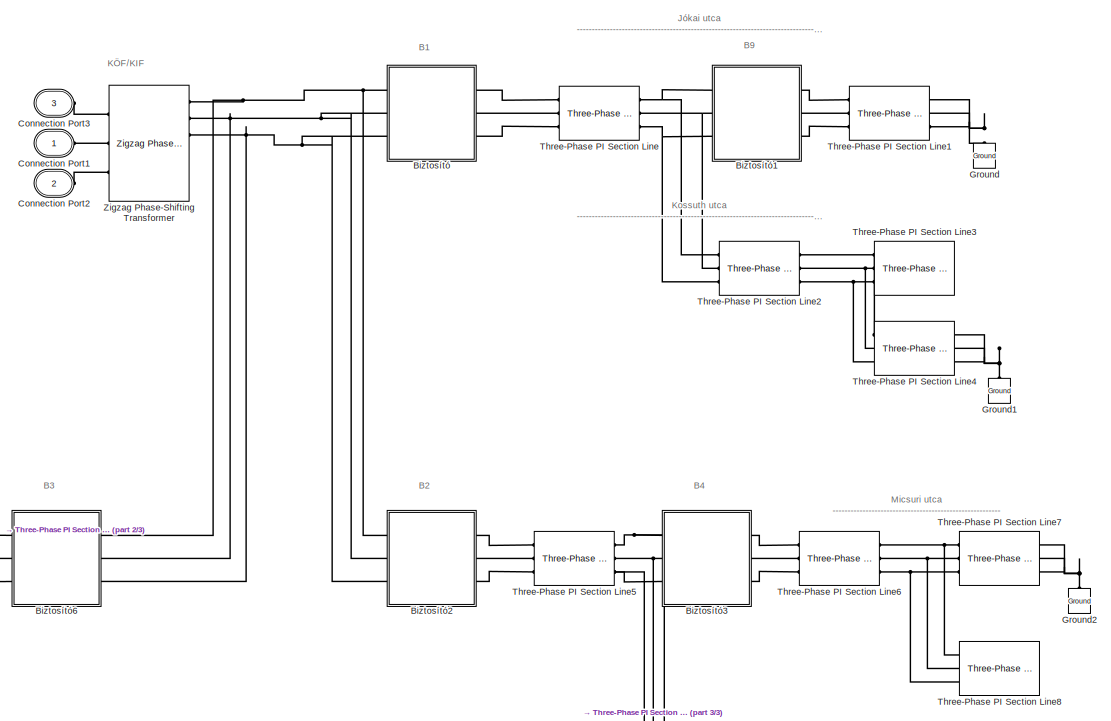
[diagram: root canvas - part 1/3, central region]
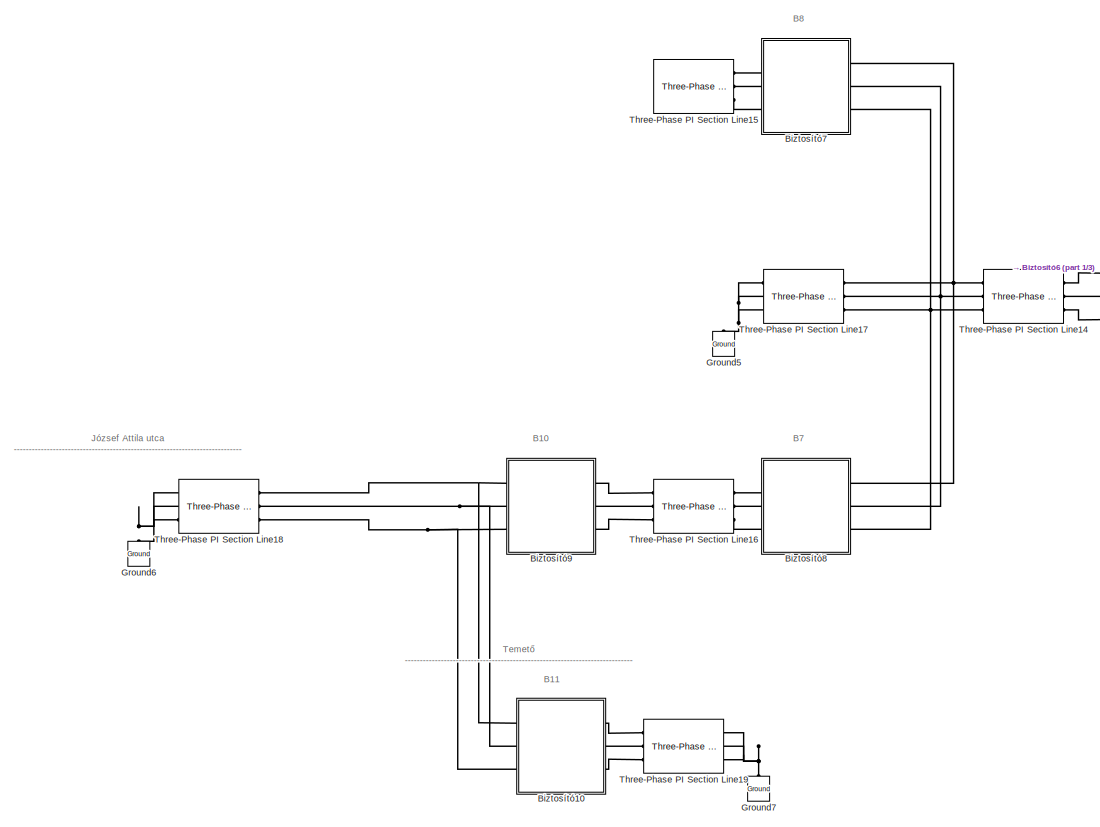
[diagram: root canvas - part 2/3, left side, full height]
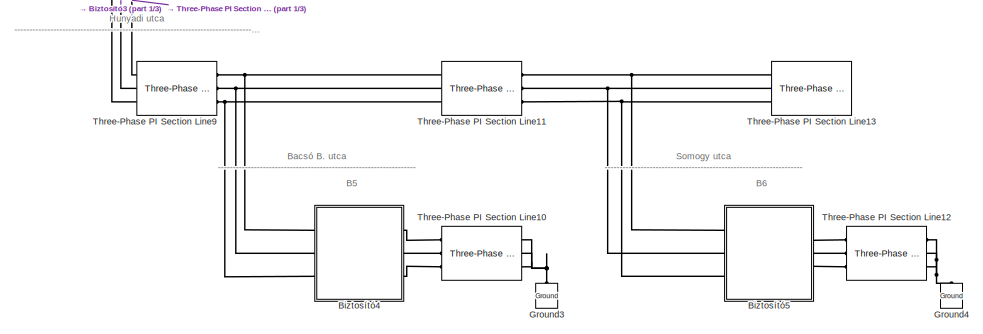
[diagram: root canvas - part 3/3, bottom right region]
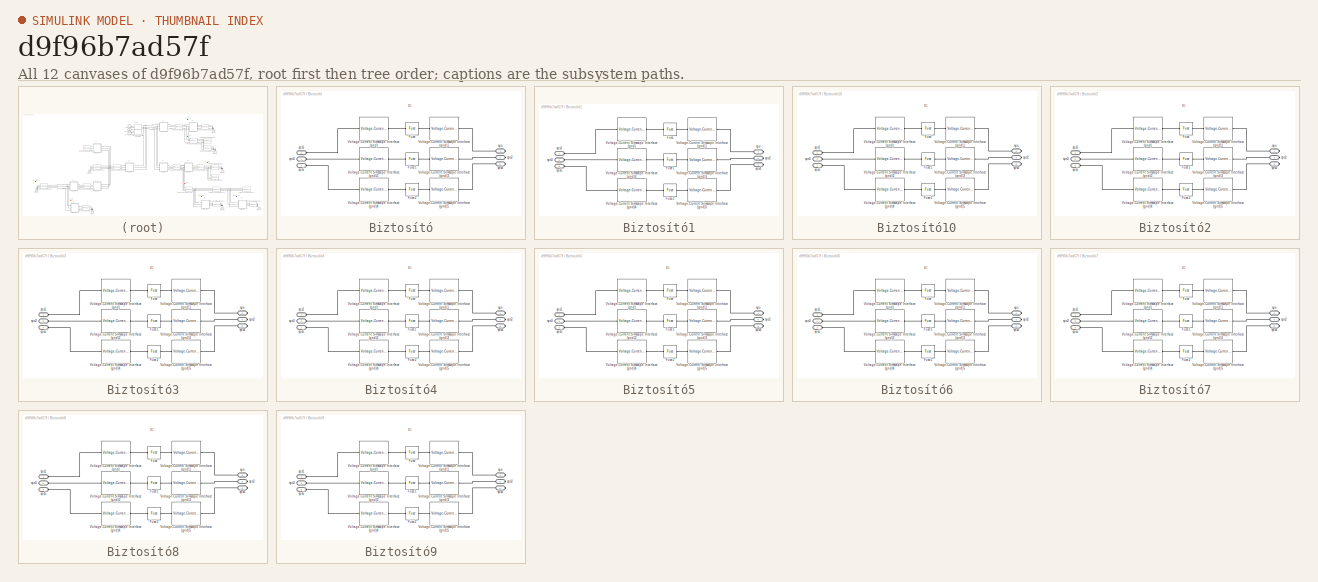
[diagram: thumbnail index - all 12 canvases of the model, root first then tree order]
MODEL slx_d9f96b7ad57f
KIND model
CONFIG AbsTol = auto
CONFIG EnableMultiTasking = off
CONFIG FixedStep = auto
CONFIG MaxStep = auto
CONFIG MinStep = auto
CONFIG RelTol = 1e-3
CONFIG SampleTimeConstraint = Unconstrained
CONFIG Solver = VariableStepAuto
CONFIG SolverName = VariableStepAuto
CONFIG StartTime = 0.0
CONFIG StopTime = 10.0
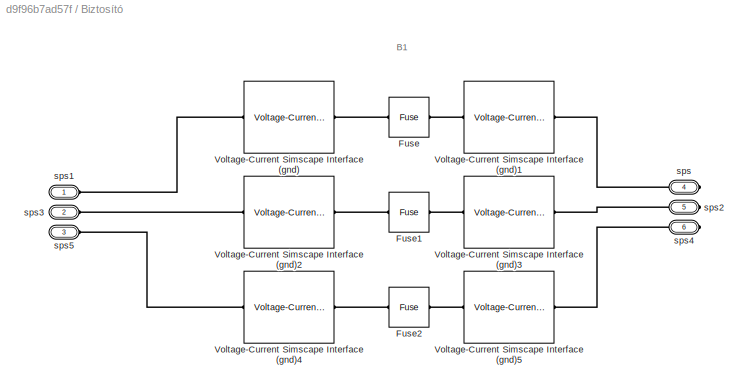
BLOCK [SubSystem] Biztosító
  Ports = [0, 0, 0, 0, 0, 3, 3]
  RequestExecContextInheritance = off
BLOCK [Reference] Biztosító/Fuse  REF=ee_lib/Switches & Breakers/Fuse
  Ports = [0, 0, 0, 0, 0, 1, 1]
  SourceBlock = ee_lib/Switches & Breakers/Fuse
  SourceProductBaseCode = PS
  SourceType = Fuse
BLOCK [Reference] Biztosító/Fuse1  REF=ee_lib/Switches & Breakers/Fuse
  Ports = [0, 0, 0, 0, 0, 1, 1]
  SourceBlock = ee_lib/Switches & Breakers/Fuse
  SourceProductBaseCode = PS
  SourceType = Fuse
BLOCK [Reference] Biztosító/Fuse2  REF=ee_lib/Switches & Breakers/Fuse
  Ports = [0, 0, 0, 0, 0, 1, 1]
  SourceBlock = ee_lib/Switches & Breakers/Fuse
  SourceProductBaseCode = PS
  SourceType = Fuse
BLOCK [Reference] Biztosító/Voltage-Current Simscape Interface (gnd)  REF=powerlib/Interface
Elements/Voltage-Current
Simscape Interface
(gnd)
  Ports = [0, 0, 0, 0, 0, 1, 1]
  SourceBlock = powerlib/Interface\nElements/Voltage-Current\nSimscape Interface\n(gnd)
  SourceProductBaseCode = PS
  SourceType = Specialized Power Systems - Simscape Interface Element
BLOCK [Reference] Biztosító/Voltage-Current Simscape Interface (gnd)1  REF=powerlib/Interface
Elements/Voltage-Current
Simscape Interface
(gnd)
  Ports = [0, 0, 0, 0, 0, 1, 1]
  SourceBlock = powerlib/Interface\nElements/Voltage-Current\nSimscape Interface\n(gnd)
  SourceProductBaseCode = PS
  SourceType = Specialized Power Systems - Simscape Interface Element
BLOCK [Reference] Biztosító/Voltage-Current Simscape Interface (gnd)2  REF=powerlib/Interface
Elements/Voltage-Current
Simscape Interface
(gnd)
  Ports = [0, 0, 0, 0, 0, 1, 1]
  SourceBlock = powerlib/Interface\nElements/Voltage-Current\nSimscape Interface\n(gnd)
  SourceProductBaseCode = PS
  SourceType = Specialized Power Systems - Simscape Interface Element
BLOCK [Reference] Biztosító/Voltage-Current Simscape Interface (gnd)3  REF=powerlib/Interface
Elements/Voltage-Current
Simscape Interface
(gnd)
  Ports = [0, 0, 0, 0, 0, 1, 1]
  SourceBlock = powerlib/Interface\nElements/Voltage-Current\nSimscape Interface\n(gnd)
  SourceProductBaseCode = PS
  SourceType = Specialized Power Systems - Simscape Interface Element
BLOCK [Reference] Biztosító/Voltage-Current Simscape Interface (gnd)4  REF=powerlib/Interface
Elements/Voltage-Current
Simscape Interface
(gnd)
  Ports = [0, 0, 0, 0, 0, 1, 1]
  SourceBlock = powerlib/Interface\nElements/Voltage-Current\nSimscape Interface\n(gnd)
  SourceProductBaseCode = PS
  SourceType = Specialized Power Systems - Simscape Interface Element
BLOCK [Reference] Biztosító/Voltage-Current Simscape Interface (gnd)5  REF=powerlib/Interface
Elements/Voltage-Current
Simscape Interface
(gnd)
  Ports = [0, 0, 0, 0, 0, 1, 1]
  SourceBlock = powerlib/Interface\nElements/Voltage-Current\nSimscape Interface\n(gnd)
  SourceProductBaseCode = PS
  SourceType = Specialized Power Systems - Simscape Interface Element
BLOCK [PMIOPort] Biztosító/sps
  Port = 4
  Side = Right
BLOCK [PMIOPort] Biztosító/sps1
  Side = Left
BLOCK [PMIOPort] Biztosító/sps2
  Port = 5
  Side = Right
BLOCK [PMIOPort] Biztosító/sps3
  Port = 2
  Side = Left
BLOCK [PMIOPort] Biztosító/sps4
  Port = 6
  Side = Right
BLOCK [PMIOPort] Biztosító/sps5
  Port = 3
  Side = Left
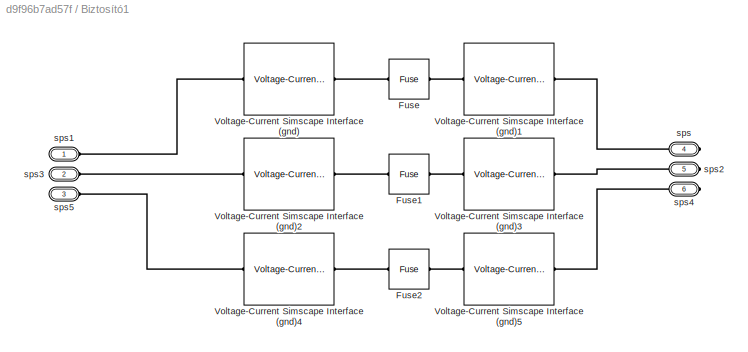
BLOCK [SubSystem] Biztosító1
  Ports = [0, 0, 0, 0, 0, 3, 3]
  RequestExecContextInheritance = off
BLOCK [Reference] Biztosító1/Fuse  REF=ee_lib/Switches & Breakers/Fuse
  Ports = [0, 0, 0, 0, 0, 1, 1]
  SourceBlock = ee_lib/Switches & Breakers/Fuse
  SourceProductBaseCode = PS
  SourceType = Fuse
BLOCK [Reference] Biztosító1/Fuse1  REF=ee_lib/Switches & Breakers/Fuse
  Ports = [0, 0, 0, 0, 0, 1, 1]
  SourceBlock = ee_lib/Switches & Breakers/Fuse
  SourceProductBaseCode = PS
  SourceType = Fuse
BLOCK [Reference] Biztosító1/Fuse2  REF=ee_lib/Switches & Breakers/Fuse
  Ports = [0, 0, 0, 0, 0, 1, 1]
  SourceBlock = ee_lib/Switches & Breakers/Fuse
  SourceProductBaseCode = PS
  SourceType = Fuse
BLOCK [Reference] Biztosító1/Voltage-Current Simscape Interface (gnd)  REF=powerlib/Interface
Elements/Voltage-Current
Simscape Interface
(gnd)
  Ports = [0, 0, 0, 0, 0, 1, 1]
  SourceBlock = powerlib/Interface\nElements/Voltage-Current\nSimscape Interface\n(gnd)
  SourceProductBaseCode = PS
  SourceType = Specialized Power Systems - Simscape Interface Element
BLOCK [Reference] Biztosító1/Voltage-Current Simscape Interface (gnd)1  REF=powerlib/Interface
Elements/Voltage-Current
Simscape Interface
(gnd)
  Ports = [0, 0, 0, 0, 0, 1, 1]
  SourceBlock = powerlib/Interface\nElements/Voltage-Current\nSimscape Interface\n(gnd)
  SourceProductBaseCode = PS
  SourceType = Specialized Power Systems - Simscape Interface Element
BLOCK [Reference] Biztosító1/Voltage-Current Simscape Interface (gnd)2  REF=powerlib/Interface
Elements/Voltage-Current
Simscape Interface
(gnd)
  Ports = [0, 0, 0, 0, 0, 1, 1]
  SourceBlock = powerlib/Interface\nElements/Voltage-Current\nSimscape Interface\n(gnd)
  SourceProductBaseCode = PS
  SourceType = Specialized Power Systems - Simscape Interface Element
BLOCK [Reference] Biztosító1/Voltage-Current Simscape Interface (gnd)3  REF=powerlib/Interface
Elements/Voltage-Current
Simscape Interface
(gnd)
  Ports = [0, 0, 0, 0, 0, 1, 1]
  SourceBlock = powerlib/Interface\nElements/Voltage-Current\nSimscape Interface\n(gnd)
  SourceProductBaseCode = PS
  SourceType = Specialized Power Systems - Simscape Interface Element
BLOCK [Reference] Biztosító1/Voltage-Current Simscape Interface (gnd)4  REF=powerlib/Interface
Elements/Voltage-Current
Simscape Interface
(gnd)
  Ports = [0, 0, 0, 0, 0, 1, 1]
  SourceBlock = powerlib/Interface\nElements/Voltage-Current\nSimscape Interface\n(gnd)
  SourceProductBaseCode = PS
  SourceType = Specialized Power Systems - Simscape Interface Element
BLOCK [Reference] Biztosító1/Voltage-Current Simscape Interface (gnd)5  REF=powerlib/Interface
Elements/Voltage-Current
Simscape Interface
(gnd)
  Ports = [0, 0, 0, 0, 0, 1, 1]
  SourceBlock = powerlib/Interface\nElements/Voltage-Current\nSimscape Interface\n(gnd)
  SourceProductBaseCode = PS
  SourceType = Specialized Power Systems - Simscape Interface Element
BLOCK [PMIOPort] Biztosító1/sps
  Port = 4
  Side = Right
BLOCK [PMIOPort] Biztosító1/sps1
  Side = Left
BLOCK [PMIOPort] Biztosító1/sps2
  Port = 5
  Side = Right
BLOCK [PMIOPort] Biztosító1/sps3
  Port = 2
  Side = Left
BLOCK [PMIOPort] Biztosító1/sps4
  Port = 6
  Side = Right
BLOCK [PMIOPort] Biztosító1/sps5
  Port = 3
  Side = Left
BLOCK [SubSystem] Biztosító10
  Ports = [0, 0, 0, 0, 0, 3, 3]
  RequestExecContextInheritance = off
BLOCK [Reference] Biztosító10/Fuse  REF=ee_lib/Switches & Breakers/Fuse
  Ports = [0, 0, 0, 0, 0, 1, 1]
  SourceBlock = ee_lib/Switches & Breakers/Fuse
  SourceProductBaseCode = PS
  SourceType = Fuse
BLOCK [Reference] Biztosító10/Fuse1  REF=ee_lib/Switches & Breakers/Fuse
  Ports = [0, 0, 0, 0, 0, 1, 1]
  SourceBlock = ee_lib/Switches & Breakers/Fuse
  SourceProductBaseCode = PS
  SourceType = Fuse
BLOCK [Reference] Biztosító10/Fuse2  REF=ee_lib/Switches & Breakers/Fuse
  Ports = [0, 0, 0, 0, 0, 1, 1]
  SourceBlock = ee_lib/Switches & Breakers/Fuse
  SourceProductBaseCode = PS
  SourceType = Fuse
BLOCK [Reference] Biztosító10/Voltage-Current Simscape Interface (gnd)  REF=powerlib/Interface
Elements/Voltage-Current
Simscape Interface
(gnd)
  Ports = [0, 0, 0, 0, 0, 1, 1]
  SourceBlock = powerlib/Interface\nElements/Voltage-Current\nSimscape Interface\n(gnd)
  SourceProductBaseCode = PS
  SourceType = Specialized Power Systems - Simscape Interface Element
BLOCK [Reference] Biztosító10/Voltage-Current Simscape Interface (gnd)1  REF=powerlib/Interface
Elements/Voltage-Current
Simscape Interface
(gnd)
  Ports = [0, 0, 0, 0, 0, 1, 1]
  SourceBlock = powerlib/Interface\nElements/Voltage-Current\nSimscape Interface\n(gnd)
  SourceProductBaseCode = PS
  SourceType = Specialized Power Systems - Simscape Interface Element
BLOCK [Reference] Biztosító10/Voltage-Current Simscape Interface (gnd)2  REF=powerlib/Interface
Elements/Voltage-Current
Simscape Interface
(gnd)
  Ports = [0, 0, 0, 0, 0, 1, 1]
  SourceBlock = powerlib/Interface\nElements/Voltage-Current\nSimscape Interface\n(gnd)
  SourceProductBaseCode = PS
  SourceType = Specialized Power Systems - Simscape Interface Element
BLOCK [Reference] Biztosító10/Voltage-Current Simscape Interface (gnd)3  REF=powerlib/Interface
Elements/Voltage-Current
Simscape Interface
(gnd)
  Ports = [0, 0, 0, 0, 0, 1, 1]
  SourceBlock = powerlib/Interface\nElements/Voltage-Current\nSimscape Interface\n(gnd)
  SourceProductBaseCode = PS
  SourceType = Specialized Power Systems - Simscape Interface Element
BLOCK [Reference] Biztosító10/Voltage-Current Simscape Interface (gnd)4  REF=powerlib/Interface
Elements/Voltage-Current
Simscape Interface
(gnd)
  Ports = [0, 0, 0, 0, 0, 1, 1]
  SourceBlock = powerlib/Interface\nElements/Voltage-Current\nSimscape Interface\n(gnd)
  SourceProductBaseCode = PS
  SourceType = Specialized Power Systems - Simscape Interface Element
BLOCK [Reference] Biztosító10/Voltage-Current Simscape Interface (gnd)5  REF=powerlib/Interface
Elements/Voltage-Current
Simscape Interface
(gnd)
  Ports = [0, 0, 0, 0, 0, 1, 1]
  SourceBlock = powerlib/Interface\nElements/Voltage-Current\nSimscape Interface\n(gnd)
  SourceProductBaseCode = PS
  SourceType = Specialized Power Systems - Simscape Interface Element
BLOCK [PMIOPort] Biztosító10/sps
  Port = 4
  Side = Right
BLOCK [PMIOPort] Biztosító10/sps1
  Side = Left
BLOCK [PMIOPort] Biztosító10/sps2
  Port = 5
  Side = Right
BLOCK [PMIOPort] Biztosító10/sps3
  Port = 2
  Side = Left
BLOCK [PMIOPort] Biztosító10/sps4
  Port = 6
  Side = Right
BLOCK [PMIOPort] Biztosító10/sps5
  Port = 3
  Side = Left
BLOCK [SubSystem] Biztosító2
  Ports = [0, 0, 0, 0, 0, 3, 3]
  RequestExecContextInheritance = off
BLOCK [Reference] Biztosító2/Fuse  REF=ee_lib/Switches & Breakers/Fuse
  Ports = [0, 0, 0, 0, 0, 1, 1]
  SourceBlock = ee_lib/Switches & Breakers/Fuse
  SourceProductBaseCode = PS
  SourceType = Fuse
BLOCK [Reference] Biztosító2/Fuse1  REF=ee_lib/Switches & Breakers/Fuse
  Ports = [0, 0, 0, 0, 0, 1, 1]
  SourceBlock = ee_lib/Switches & Breakers/Fuse
  SourceProductBaseCode = PS
  SourceType = Fuse
BLOCK [Reference] Biztosító2/Fuse2  REF=ee_lib/Switches & Breakers/Fuse
  Ports = [0, 0, 0, 0, 0, 1, 1]
  SourceBlock = ee_lib/Switches & Breakers/Fuse
  SourceProductBaseCode = PS
  SourceType = Fuse
BLOCK [Reference] Biztosító2/Voltage-Current Simscape Interface (gnd)  REF=powerlib/Interface
Elements/Voltage-Current
Simscape Interface
(gnd)
  Ports = [0, 0, 0, 0, 0, 1, 1]
  SourceBlock = powerlib/Interface\nElements/Voltage-Current\nSimscape Interface\n(gnd)
  SourceProductBaseCode = PS
  SourceType = Specialized Power Systems - Simscape Interface Element
BLOCK [Reference] Biztosító2/Voltage-Current Simscape Interface (gnd)1  REF=powerlib/Interface
Elements/Voltage-Current
Simscape Interface
(gnd)
  Ports = [0, 0, 0, 0, 0, 1, 1]
  SourceBlock = powerlib/Interface\nElements/Voltage-Current\nSimscape Interface\n(gnd)
  SourceProductBaseCode = PS
  SourceType = Specialized Power Systems - Simscape Interface Element
BLOCK [Reference] Biztosító2/Voltage-Current Simscape Interface (gnd)2  REF=powerlib/Interface
Elements/Voltage-Current
Simscape Interface
(gnd)
  Ports = [0, 0, 0, 0, 0, 1, 1]
  SourceBlock = powerlib/Interface\nElements/Voltage-Current\nSimscape Interface\n(gnd)
  SourceProductBaseCode = PS
  SourceType = Specialized Power Systems - Simscape Interface Element
BLOCK [Reference] Biztosító2/Voltage-Current Simscape Interface (gnd)3  REF=powerlib/Interface
Elements/Voltage-Current
Simscape Interface
(gnd)
  Ports = [0, 0, 0, 0, 0, 1, 1]
  SourceBlock = powerlib/Interface\nElements/Voltage-Current\nSimscape Interface\n(gnd)
  SourceProductBaseCode = PS
  SourceType = Specialized Power Systems - Simscape Interface Element
BLOCK [Reference] Biztosító2/Voltage-Current Simscape Interface (gnd)4  REF=powerlib/Interface
Elements/Voltage-Current
Simscape Interface
(gnd)
  Ports = [0, 0, 0, 0, 0, 1, 1]
  SourceBlock = powerlib/Interface\nElements/Voltage-Current\nSimscape Interface\n(gnd)
  SourceProductBaseCode = PS
  SourceType = Specialized Power Systems - Simscape Interface Element
BLOCK [Reference] Biztosító2/Voltage-Current Simscape Interface (gnd)5  REF=powerlib/Interface
Elements/Voltage-Current
Simscape Interface
(gnd)
  Ports = [0, 0, 0, 0, 0, 1, 1]
  SourceBlock = powerlib/Interface\nElements/Voltage-Current\nSimscape Interface\n(gnd)
  SourceProductBaseCode = PS
  SourceType = Specialized Power Systems - Simscape Interface Element
BLOCK [PMIOPort] Biztosító2/sps
  Port = 4
  Side = Right
BLOCK [PMIOPort] Biztosító2/sps1
  Side = Left
BLOCK [PMIOPort] Biztosító2/sps2
  Port = 5
  Side = Right
BLOCK [PMIOPort] Biztosító2/sps3
  Port = 2
  Side = Left
BLOCK [PMIOPort] Biztosító2/sps4
  Port = 6
  Side = Right
BLOCK [PMIOPort] Biztosító2/sps5
  Port = 3
  Side = Left
BLOCK [SubSystem] Biztosító3
  Ports = [0, 0, 0, 0, 0, 3, 3]
  RequestExecContextInheritance = off
BLOCK [Reference] Biztosító3/Fuse  REF=ee_lib/Switches & Breakers/Fuse
  Ports = [0, 0, 0, 0, 0, 1, 1]
  SourceBlock = ee_lib/Switches & Breakers/Fuse
  SourceProductBaseCode = PS
  SourceType = Fuse
BLOCK [Reference] Biztosító3/Fuse1  REF=ee_lib/Switches & Breakers/Fuse
  Ports = [0, 0, 0, 0, 0, 1, 1]
  SourceBlock = ee_lib/Switches & Breakers/Fuse
  SourceProductBaseCode = PS
  SourceType = Fuse
BLOCK [Reference] Biztosító3/Fuse2  REF=ee_lib/Switches & Breakers/Fuse
  Ports = [0, 0, 0, 0, 0, 1, 1]
  SourceBlock = ee_lib/Switches & Breakers/Fuse
  SourceProductBaseCode = PS
  SourceType = Fuse
BLOCK [Reference] Biztosító3/Voltage-Current Simscape Interface (gnd)  REF=powerlib/Interface
Elements/Voltage-Current
Simscape Interface
(gnd)
  Ports = [0, 0, 0, 0, 0, 1, 1]
  SourceBlock = powerlib/Interface\nElements/Voltage-Current\nSimscape Interface\n(gnd)
  SourceProductBaseCode = PS
  SourceType = Specialized Power Systems - Simscape Interface Element
BLOCK [Reference] Biztosító3/Voltage-Current Simscape Interface (gnd)1  REF=powerlib/Interface
Elements/Voltage-Current
Simscape Interface
(gnd)
  Ports = [0, 0, 0, 0, 0, 1, 1]
  SourceBlock = powerlib/Interface\nElements/Voltage-Current\nSimscape Interface\n(gnd)
  SourceProductBaseCode = PS
  SourceType = Specialized Power Systems - Simscape Interface Element
BLOCK [Reference] Biztosító3/Voltage-Current Simscape Interface (gnd)2  REF=powerlib/Interface
Elements/Voltage-Current
Simscape Interface
(gnd)
  Ports = [0, 0, 0, 0, 0, 1, 1]
  SourceBlock = powerlib/Interface\nElements/Voltage-Current\nSimscape Interface\n(gnd)
  SourceProductBaseCode = PS
  SourceType = Specialized Power Systems - Simscape Interface Element
BLOCK [Reference] Biztosító3/Voltage-Current Simscape Interface (gnd)3  REF=powerlib/Interface
Elements/Voltage-Current
Simscape Interface
(gnd)
  Ports = [0, 0, 0, 0, 0, 1, 1]
  SourceBlock = powerlib/Interface\nElements/Voltage-Current\nSimscape Interface\n(gnd)
  SourceProductBaseCode = PS
  SourceType = Specialized Power Systems - Simscape Interface Element
BLOCK [Reference] Biztosító3/Voltage-Current Simscape Interface (gnd)4  REF=powerlib/Interface
Elements/Voltage-Current
Simscape Interface
(gnd)
  Ports = [0, 0, 0, 0, 0, 1, 1]
  SourceBlock = powerlib/Interface\nElements/Voltage-Current\nSimscape Interface\n(gnd)
  SourceProductBaseCode = PS
  SourceType = Specialized Power Systems - Simscape Interface Element
BLOCK [Reference] Biztosító3/Voltage-Current Simscape Interface (gnd)5  REF=powerlib/Interface
Elements/Voltage-Current
Simscape Interface
(gnd)
  Ports = [0, 0, 0, 0, 0, 1, 1]
  SourceBlock = powerlib/Interface\nElements/Voltage-Current\nSimscape Interface\n(gnd)
  SourceProductBaseCode = PS
  SourceType = Specialized Power Systems - Simscape Interface Element
BLOCK [PMIOPort] Biztosító3/sps
  Port = 4
  Side = Right
BLOCK [PMIOPort] Biztosító3/sps1
  Side = Left
BLOCK [PMIOPort] Biztosító3/sps2
  Port = 5
  Side = Right
BLOCK [PMIOPort] Biztosító3/sps3
  Port = 2
  Side = Left
BLOCK [PMIOPort] Biztosító3/sps4
  Port = 6
  Side = Right
BLOCK [PMIOPort] Biztosító3/sps5
  Port = 3
  Side = Left
BLOCK [SubSystem] Biztosító4
  Ports = [0, 0, 0, 0, 0, 3, 3]
  RequestExecContextInheritance = off
BLOCK [Reference] Biztosító4/Fuse  REF=ee_lib/Switches & Breakers/Fuse
  Ports = [0, 0, 0, 0, 0, 1, 1]
  SourceBlock = ee_lib/Switches & Breakers/Fuse
  SourceProductBaseCode = PS
  SourceType = Fuse
BLOCK [Reference] Biztosító4/Fuse1  REF=ee_lib/Switches & Breakers/Fuse
  Ports = [0, 0, 0, 0, 0, 1, 1]
  SourceBlock = ee_lib/Switches & Breakers/Fuse
  SourceProductBaseCode = PS
  SourceType = Fuse
BLOCK [Reference] Biztosító4/Fuse2  REF=ee_lib/Switches & Breakers/Fuse
  Ports = [0, 0, 0, 0, 0, 1, 1]
  SourceBlock = ee_lib/Switches & Breakers/Fuse
  SourceProductBaseCode = PS
  SourceType = Fuse
BLOCK [Reference] Biztosító4/Voltage-Current Simscape Interface (gnd)  REF=powerlib/Interface
Elements/Voltage-Current
Simscape Interface
(gnd)
  Ports = [0, 0, 0, 0, 0, 1, 1]
  SourceBlock = powerlib/Interface\nElements/Voltage-Current\nSimscape Interface\n(gnd)
  SourceProductBaseCode = PS
  SourceType = Specialized Power Systems - Simscape Interface Element
BLOCK [Reference] Biztosító4/Voltage-Current Simscape Interface (gnd)1  REF=powerlib/Interface
Elements/Voltage-Current
Simscape Interface
(gnd)
  Ports = [0, 0, 0, 0, 0, 1, 1]
  SourceBlock = powerlib/Interface\nElements/Voltage-Current\nSimscape Interface\n(gnd)
  SourceProductBaseCode = PS
  SourceType = Specialized Power Systems - Simscape Interface Element
BLOCK [Reference] Biztosító4/Voltage-Current Simscape Interface (gnd)2  REF=powerlib/Interface
Elements/Voltage-Current
Simscape Interface
(gnd)
  Ports = [0, 0, 0, 0, 0, 1, 1]
  SourceBlock = powerlib/Interface\nElements/Voltage-Current\nSimscape Interface\n(gnd)
  SourceProductBaseCode = PS
  SourceType = Specialized Power Systems - Simscape Interface Element
BLOCK [Reference] Biztosító4/Voltage-Current Simscape Interface (gnd)3  REF=powerlib/Interface
Elements/Voltage-Current
Simscape Interface
(gnd)
  Ports = [0, 0, 0, 0, 0, 1, 1]
  SourceBlock = powerlib/Interface\nElements/Voltage-Current\nSimscape Interface\n(gnd)
  SourceProductBaseCode = PS
  SourceType = Specialized Power Systems - Simscape Interface Element
BLOCK [Reference] Biztosító4/Voltage-Current Simscape Interface (gnd)4  REF=powerlib/Interface
Elements/Voltage-Current
Simscape Interface
(gnd)
  Ports = [0, 0, 0, 0, 0, 1, 1]
  SourceBlock = powerlib/Interface\nElements/Voltage-Current\nSimscape Interface\n(gnd)
  SourceProductBaseCode = PS
  SourceType = Specialized Power Systems - Simscape Interface Element
BLOCK [Reference] Biztosító4/Voltage-Current Simscape Interface (gnd)5  REF=powerlib/Interface
Elements/Voltage-Current
Simscape Interface
(gnd)
  Ports = [0, 0, 0, 0, 0, 1, 1]
  SourceBlock = powerlib/Interface\nElements/Voltage-Current\nSimscape Interface\n(gnd)
  SourceProductBaseCode = PS
  SourceType = Specialized Power Systems - Simscape Interface Element
BLOCK [PMIOPort] Biztosító4/sps
  Port = 4
  Side = Right
BLOCK [PMIOPort] Biztosító4/sps1
  Side = Left
BLOCK [PMIOPort] Biztosító4/sps2
  Port = 5
  Side = Right
BLOCK [PMIOPort] Biztosító4/sps3
  Port = 2
  Side = Left
BLOCK [PMIOPort] Biztosító4/sps4
  Port = 6
  Side = Right
BLOCK [PMIOPort] Biztosító4/sps5
  Port = 3
  Side = Left
BLOCK [SubSystem] Biztosító5
  Ports = [0, 0, 0, 0, 0, 3, 3]
  RequestExecContextInheritance = off
BLOCK [Reference] Biztosító5/Fuse  REF=ee_lib/Switches & Breakers/Fuse
  Ports = [0, 0, 0, 0, 0, 1, 1]
  SourceBlock = ee_lib/Switches & Breakers/Fuse
  SourceProductBaseCode = PS
  SourceType = Fuse
BLOCK [Reference] Biztosító5/Fuse1  REF=ee_lib/Switches & Breakers/Fuse
  Ports = [0, 0, 0, 0, 0, 1, 1]
  SourceBlock = ee_lib/Switches & Breakers/Fuse
  SourceProductBaseCode = PS
  SourceType = Fuse
BLOCK [Reference] Biztosító5/Fuse2  REF=ee_lib/Switches & Breakers/Fuse
  Ports = [0, 0, 0, 0, 0, 1, 1]
  SourceBlock = ee_lib/Switches & Breakers/Fuse
  SourceProductBaseCode = PS
  SourceType = Fuse
BLOCK [Reference] Biztosító5/Voltage-Current Simscape Interface (gnd)  REF=powerlib/Interface
Elements/Voltage-Current
Simscape Interface
(gnd)
  Ports = [0, 0, 0, 0, 0, 1, 1]
  SourceBlock = powerlib/Interface\nElements/Voltage-Current\nSimscape Interface\n(gnd)
  SourceProductBaseCode = PS
  SourceType = Specialized Power Systems - Simscape Interface Element
BLOCK [Reference] Biztosító5/Voltage-Current Simscape Interface (gnd)1  REF=powerlib/Interface
Elements/Voltage-Current
Simscape Interface
(gnd)
  Ports = [0, 0, 0, 0, 0, 1, 1]
  SourceBlock = powerlib/Interface\nElements/Voltage-Current\nSimscape Interface\n(gnd)
  SourceProductBaseCode = PS
  SourceType = Specialized Power Systems - Simscape Interface Element
BLOCK [Reference] Biztosító5/Voltage-Current Simscape Interface (gnd)2  REF=powerlib/Interface
Elements/Voltage-Current
Simscape Interface
(gnd)
  Ports = [0, 0, 0, 0, 0, 1, 1]
  SourceBlock = powerlib/Interface\nElements/Voltage-Current\nSimscape Interface\n(gnd)
  SourceProductBaseCode = PS
  SourceType = Specialized Power Systems - Simscape Interface Element
BLOCK [Reference] Biztosító5/Voltage-Current Simscape Interface (gnd)3  REF=powerlib/Interface
Elements/Voltage-Current
Simscape Interface
(gnd)
  Ports = [0, 0, 0, 0, 0, 1, 1]
  SourceBlock = powerlib/Interface\nElements/Voltage-Current\nSimscape Interface\n(gnd)
  SourceProductBaseCode = PS
  SourceType = Specialized Power Systems - Simscape Interface Element
BLOCK [Reference] Biztosító5/Voltage-Current Simscape Interface (gnd)4  REF=powerlib/Interface
Elements/Voltage-Current
Simscape Interface
(gnd)
  Ports = [0, 0, 0, 0, 0, 1, 1]
  SourceBlock = powerlib/Interface\nElements/Voltage-Current\nSimscape Interface\n(gnd)
  SourceProductBaseCode = PS
  SourceType = Specialized Power Systems - Simscape Interface Element
BLOCK [Reference] Biztosító5/Voltage-Current Simscape Interface (gnd)5  REF=powerlib/Interface
Elements/Voltage-Current
Simscape Interface
(gnd)
  Ports = [0, 0, 0, 0, 0, 1, 1]
  SourceBlock = powerlib/Interface\nElements/Voltage-Current\nSimscape Interface\n(gnd)
  SourceProductBaseCode = PS
  SourceType = Specialized Power Systems - Simscape Interface Element
BLOCK [PMIOPort] Biztosító5/sps
  Port = 4
  Side = Right
BLOCK [PMIOPort] Biztosító5/sps1
  Side = Left
BLOCK [PMIOPort] Biztosító5/sps2
  Port = 5
  Side = Right
BLOCK [PMIOPort] Biztosító5/sps3
  Port = 2
  Side = Left
BLOCK [PMIOPort] Biztosító5/sps4
  Port = 6
  Side = Right
BLOCK [PMIOPort] Biztosító5/sps5
  Port = 3
  Side = Left
BLOCK [SubSystem] Biztosító6
  Ports = [0, 0, 0, 0, 0, 3, 3]
  RequestExecContextInheritance = off
BLOCK [Reference] Biztosító6/Fuse  REF=ee_lib/Switches & Breakers/Fuse
  Ports = [0, 0, 0, 0, 0, 1, 1]
  SourceBlock = ee_lib/Switches & Breakers/Fuse
  SourceProductBaseCode = PS
  SourceType = Fuse
BLOCK [Reference] Biztosító6/Fuse1  REF=ee_lib/Switches & Breakers/Fuse
  Ports = [0, 0, 0, 0, 0, 1, 1]
  SourceBlock = ee_lib/Switches & Breakers/Fuse
  SourceProductBaseCode = PS
  SourceType = Fuse
BLOCK [Reference] Biztosító6/Fuse2  REF=ee_lib/Switches & Breakers/Fuse
  Ports = [0, 0, 0, 0, 0, 1, 1]
  SourceBlock = ee_lib/Switches & Breakers/Fuse
  SourceProductBaseCode = PS
  SourceType = Fuse
BLOCK [Reference] Biztosító6/Voltage-Current Simscape Interface (gnd)  REF=powerlib/Interface
Elements/Voltage-Current
Simscape Interface
(gnd)
  Ports = [0, 0, 0, 0, 0, 1, 1]
  SourceBlock = powerlib/Interface\nElements/Voltage-Current\nSimscape Interface\n(gnd)
  SourceProductBaseCode = PS
  SourceType = Specialized Power Systems - Simscape Interface Element
BLOCK [Reference] Biztosító6/Voltage-Current Simscape Interface (gnd)1  REF=powerlib/Interface
Elements/Voltage-Current
Simscape Interface
(gnd)
  Ports = [0, 0, 0, 0, 0, 1, 1]
  SourceBlock = powerlib/Interface\nElements/Voltage-Current\nSimscape Interface\n(gnd)
  SourceProductBaseCode = PS
  SourceType = Specialized Power Systems - Simscape Interface Element
BLOCK [Reference] Biztosító6/Voltage-Current Simscape Interface (gnd)2  REF=powerlib/Interface
Elements/Voltage-Current
Simscape Interface
(gnd)
  Ports = [0, 0, 0, 0, 0, 1, 1]
  SourceBlock = powerlib/Interface\nElements/Voltage-Current\nSimscape Interface\n(gnd)
  SourceProductBaseCode = PS
  SourceType = Specialized Power Systems - Simscape Interface Element
BLOCK [Reference] Biztosító6/Voltage-Current Simscape Interface (gnd)3  REF=powerlib/Interface
Elements/Voltage-Current
Simscape Interface
(gnd)
  Ports = [0, 0, 0, 0, 0, 1, 1]
  SourceBlock = powerlib/Interface\nElements/Voltage-Current\nSimscape Interface\n(gnd)
  SourceProductBaseCode = PS
  SourceType = Specialized Power Systems - Simscape Interface Element
BLOCK [Reference] Biztosító6/Voltage-Current Simscape Interface (gnd)4  REF=powerlib/Interface
Elements/Voltage-Current
Simscape Interface
(gnd)
  Ports = [0, 0, 0, 0, 0, 1, 1]
  SourceBlock = powerlib/Interface\nElements/Voltage-Current\nSimscape Interface\n(gnd)
  SourceProductBaseCode = PS
  SourceType = Specialized Power Systems - Simscape Interface Element
BLOCK [Reference] Biztosító6/Voltage-Current Simscape Interface (gnd)5  REF=powerlib/Interface
Elements/Voltage-Current
Simscape Interface
(gnd)
  Ports = [0, 0, 0, 0, 0, 1, 1]
  SourceBlock = powerlib/Interface\nElements/Voltage-Current\nSimscape Interface\n(gnd)
  SourceProductBaseCode = PS
  SourceType = Specialized Power Systems - Simscape Interface Element
BLOCK [PMIOPort] Biztosító6/sps
  Port = 4
  Side = Right
BLOCK [PMIOPort] Biztosító6/sps1
  Side = Left
BLOCK [PMIOPort] Biztosító6/sps2
  Port = 5
  Side = Right
BLOCK [PMIOPort] Biztosító6/sps3
  Port = 2
  Side = Left
BLOCK [PMIOPort] Biztosító6/sps4
  Port = 6
  Side = Right
BLOCK [PMIOPort] Biztosító6/sps5
  Port = 3
  Side = Left
BLOCK [SubSystem] Biztosító7
  Ports = [0, 0, 0, 0, 0, 3, 3]
  RequestExecContextInheritance = off
BLOCK [Reference] Biztosító7/Fuse  REF=ee_lib/Switches & Breakers/Fuse
  Ports = [0, 0, 0, 0, 0, 1, 1]
  SourceBlock = ee_lib/Switches & Breakers/Fuse
  SourceProductBaseCode = PS
  SourceType = Fuse
BLOCK [Reference] Biztosító7/Fuse1  REF=ee_lib/Switches & Breakers/Fuse
  Ports = [0, 0, 0, 0, 0, 1, 1]
  SourceBlock = ee_lib/Switches & Breakers/Fuse
  SourceProductBaseCode = PS
  SourceType = Fuse
BLOCK [Reference] Biztosító7/Fuse2  REF=ee_lib/Switches & Breakers/Fuse
  Ports = [0, 0, 0, 0, 0, 1, 1]
  SourceBlock = ee_lib/Switches & Breakers/Fuse
  SourceProductBaseCode = PS
  SourceType = Fuse
BLOCK [Reference] Biztosító7/Voltage-Current Simscape Interface (gnd)  REF=powerlib/Interface
Elements/Voltage-Current
Simscape Interface
(gnd)
  Ports = [0, 0, 0, 0, 0, 1, 1]
  SourceBlock = powerlib/Interface\nElements/Voltage-Current\nSimscape Interface\n(gnd)
  SourceProductBaseCode = PS
  SourceType = Specialized Power Systems - Simscape Interface Element
BLOCK [Reference] Biztosító7/Voltage-Current Simscape Interface (gnd)1  REF=powerlib/Interface
Elements/Voltage-Current
Simscape Interface
(gnd)
  Ports = [0, 0, 0, 0, 0, 1, 1]
  SourceBlock = powerlib/Interface\nElements/Voltage-Current\nSimscape Interface\n(gnd)
  SourceProductBaseCode = PS
  SourceType = Specialized Power Systems - Simscape Interface Element
BLOCK [Reference] Biztosító7/Voltage-Current Simscape Interface (gnd)2  REF=powerlib/Interface
Elements/Voltage-Current
Simscape Interface
(gnd)
  Ports = [0, 0, 0, 0, 0, 1, 1]
  SourceBlock = powerlib/Interface\nElements/Voltage-Current\nSimscape Interface\n(gnd)
  SourceProductBaseCode = PS
  SourceType = Specialized Power Systems - Simscape Interface Element
BLOCK [Reference] Biztosító7/Voltage-Current Simscape Interface (gnd)3  REF=powerlib/Interface
Elements/Voltage-Current
Simscape Interface
(gnd)
  Ports = [0, 0, 0, 0, 0, 1, 1]
  SourceBlock = powerlib/Interface\nElements/Voltage-Current\nSimscape Interface\n(gnd)
  SourceProductBaseCode = PS
  SourceType = Specialized Power Systems - Simscape Interface Element
BLOCK [Reference] Biztosító7/Voltage-Current Simscape Interface (gnd)4  REF=powerlib/Interface
Elements/Voltage-Current
Simscape Interface
(gnd)
  Ports = [0, 0, 0, 0, 0, 1, 1]
  SourceBlock = powerlib/Interface\nElements/Voltage-Current\nSimscape Interface\n(gnd)
  SourceProductBaseCode = PS
  SourceType = Specialized Power Systems - Simscape Interface Element
BLOCK [Reference] Biztosító7/Voltage-Current Simscape Interface (gnd)5  REF=powerlib/Interface
Elements/Voltage-Current
Simscape Interface
(gnd)
  Ports = [0, 0, 0, 0, 0, 1, 1]
  SourceBlock = powerlib/Interface\nElements/Voltage-Current\nSimscape Interface\n(gnd)
  SourceProductBaseCode = PS
  SourceType = Specialized Power Systems - Simscape Interface Element
BLOCK [PMIOPort] Biztosító7/sps
  Port = 4
  Side = Right
BLOCK [PMIOPort] Biztosító7/sps1
  Side = Left
BLOCK [PMIOPort] Biztosító7/sps2
  Port = 5
  Side = Right
BLOCK [PMIOPort] Biztosító7/sps3
  Port = 2
  Side = Left
BLOCK [PMIOPort] Biztosító7/sps4
  Port = 6
  Side = Right
BLOCK [PMIOPort] Biztosító7/sps5
  Port = 3
  Side = Left
BLOCK [SubSystem] Biztosító8
  Ports = [0, 0, 0, 0, 0, 3, 3]
  RequestExecContextInheritance = off
BLOCK [Reference] Biztosító8/Fuse  REF=ee_lib/Switches & Breakers/Fuse
  Ports = [0, 0, 0, 0, 0, 1, 1]
  SourceBlock = ee_lib/Switches & Breakers/Fuse
  SourceProductBaseCode = PS
  SourceType = Fuse
BLOCK [Reference] Biztosító8/Fuse1  REF=ee_lib/Switches & Breakers/Fuse
  Ports = [0, 0, 0, 0, 0, 1, 1]
  SourceBlock = ee_lib/Switches & Breakers/Fuse
  SourceProductBaseCode = PS
  SourceType = Fuse
BLOCK [Reference] Biztosító8/Fuse2  REF=ee_lib/Switches & Breakers/Fuse
  Ports = [0, 0, 0, 0, 0, 1, 1]
  SourceBlock = ee_lib/Switches & Breakers/Fuse
  SourceProductBaseCode = PS
  SourceType = Fuse
BLOCK [Reference] Biztosító8/Voltage-Current Simscape Interface (gnd)  REF=powerlib/Interface
Elements/Voltage-Current
Simscape Interface
(gnd)
  Ports = [0, 0, 0, 0, 0, 1, 1]
  SourceBlock = powerlib/Interface\nElements/Voltage-Current\nSimscape Interface\n(gnd)
  SourceProductBaseCode = PS
  SourceType = Specialized Power Systems - Simscape Interface Element
BLOCK [Reference] Biztosító8/Voltage-Current Simscape Interface (gnd)1  REF=powerlib/Interface
Elements/Voltage-Current
Simscape Interface
(gnd)
  Ports = [0, 0, 0, 0, 0, 1, 1]
  SourceBlock = powerlib/Interface\nElements/Voltage-Current\nSimscape Interface\n(gnd)
  SourceProductBaseCode = PS
  SourceType = Specialized Power Systems - Simscape Interface Element
BLOCK [Reference] Biztosító8/Voltage-Current Simscape Interface (gnd)2  REF=powerlib/Interface
Elements/Voltage-Current
Simscape Interface
(gnd)
  Ports = [0, 0, 0, 0, 0, 1, 1]
  SourceBlock = powerlib/Interface\nElements/Voltage-Current\nSimscape Interface\n(gnd)
  SourceProductBaseCode = PS
  SourceType = Specialized Power Systems - Simscape Interface Element
BLOCK [Reference] Biztosító8/Voltage-Current Simscape Interface (gnd)3  REF=powerlib/Interface
Elements/Voltage-Current
Simscape Interface
(gnd)
  Ports = [0, 0, 0, 0, 0, 1, 1]
  SourceBlock = powerlib/Interface\nElements/Voltage-Current\nSimscape Interface\n(gnd)
  SourceProductBaseCode = PS
  SourceType = Specialized Power Systems - Simscape Interface Element
BLOCK [Reference] Biztosító8/Voltage-Current Simscape Interface (gnd)4  REF=powerlib/Interface
Elements/Voltage-Current
Simscape Interface
(gnd)
  Ports = [0, 0, 0, 0, 0, 1, 1]
  SourceBlock = powerlib/Interface\nElements/Voltage-Current\nSimscape Interface\n(gnd)
  SourceProductBaseCode = PS
  SourceType = Specialized Power Systems - Simscape Interface Element
BLOCK [Reference] Biztosító8/Voltage-Current Simscape Interface (gnd)5  REF=powerlib/Interface
Elements/Voltage-Current
Simscape Interface
(gnd)
  Ports = [0, 0, 0, 0, 0, 1, 1]
  SourceBlock = powerlib/Interface\nElements/Voltage-Current\nSimscape Interface\n(gnd)
  SourceProductBaseCode = PS
  SourceType = Specialized Power Systems - Simscape Interface Element
BLOCK [PMIOPort] Biztosító8/sps
  Port = 4
  Side = Right
BLOCK [PMIOPort] Biztosító8/sps1
  Side = Left
BLOCK [PMIOPort] Biztosító8/sps2
  Port = 5
  Side = Right
BLOCK [PMIOPort] Biztosító8/sps3
  Port = 2
  Side = Left
BLOCK [PMIOPort] Biztosító8/sps4
  Port = 6
  Side = Right
BLOCK [PMIOPort] Biztosító8/sps5
  Port = 3
  Side = Left
BLOCK [SubSystem] Biztosító9
  Ports = [0, 0, 0, 0, 0, 3, 3]
  RequestExecContextInheritance = off
BLOCK [Reference] Biztosító9/Fuse  REF=ee_lib/Switches & Breakers/Fuse
  Ports = [0, 0, 0, 0, 0, 1, 1]
  SourceBlock = ee_lib/Switches & Breakers/Fuse
  SourceProductBaseCode = PS
  SourceType = Fuse
BLOCK [Reference] Biztosító9/Fuse1  REF=ee_lib/Switches & Breakers/Fuse
  Ports = [0, 0, 0, 0, 0, 1, 1]
  SourceBlock = ee_lib/Switches & Breakers/Fuse
  SourceProductBaseCode = PS
  SourceType = Fuse
BLOCK [Reference] Biztosító9/Fuse2  REF=ee_lib/Switches & Breakers/Fuse
  Ports = [0, 0, 0, 0, 0, 1, 1]
  SourceBlock = ee_lib/Switches & Breakers/Fuse
  SourceProductBaseCode = PS
  SourceType = Fuse
BLOCK [Reference] Biztosító9/Voltage-Current Simscape Interface (gnd)  REF=powerlib/Interface
Elements/Voltage-Current
Simscape Interface
(gnd)
  Ports = [0, 0, 0, 0, 0, 1, 1]
  SourceBlock = powerlib/Interface\nElements/Voltage-Current\nSimscape Interface\n(gnd)
  SourceProductBaseCode = PS
  SourceType = Specialized Power Systems - Simscape Interface Element
BLOCK [Reference] Biztosító9/Voltage-Current Simscape Interface (gnd)1  REF=powerlib/Interface
Elements/Voltage-Current
Simscape Interface
(gnd)
  Ports = [0, 0, 0, 0, 0, 1, 1]
  SourceBlock = powerlib/Interface\nElements/Voltage-Current\nSimscape Interface\n(gnd)
  SourceProductBaseCode = PS
  SourceType = Specialized Power Systems - Simscape Interface Element
BLOCK [Reference] Biztosító9/Voltage-Current Simscape Interface (gnd)2  REF=powerlib/Interface
Elements/Voltage-Current
Simscape Interface
(gnd)
  Ports = [0, 0, 0, 0, 0, 1, 1]
  SourceBlock = powerlib/Interface\nElements/Voltage-Current\nSimscape Interface\n(gnd)
  SourceProductBaseCode = PS
  SourceType = Specialized Power Systems - Simscape Interface Element
BLOCK [Reference] Biztosító9/Voltage-Current Simscape Interface (gnd)3  REF=powerlib/Interface
Elements/Voltage-Current
Simscape Interface
(gnd)
  Ports = [0, 0, 0, 0, 0, 1, 1]
  SourceBlock = powerlib/Interface\nElements/Voltage-Current\nSimscape Interface\n(gnd)
  SourceProductBaseCode = PS
  SourceType = Specialized Power Systems - Simscape Interface Element
BLOCK [Reference] Biztosító9/Voltage-Current Simscape Interface (gnd)4  REF=powerlib/Interface
Elements/Voltage-Current
Simscape Interface
(gnd)
  Ports = [0, 0, 0, 0, 0, 1, 1]
  SourceBlock = powerlib/Interface\nElements/Voltage-Current\nSimscape Interface\n(gnd)
  SourceProductBaseCode = PS
  SourceType = Specialized Power Systems - Simscape Interface Element
BLOCK [Reference] Biztosító9/Voltage-Current Simscape Interface (gnd)5  REF=powerlib/Interface
Elements/Voltage-Current
Simscape Interface
(gnd)
  Ports = [0, 0, 0, 0, 0, 1, 1]
  SourceBlock = powerlib/Interface\nElements/Voltage-Current\nSimscape Interface\n(gnd)
  SourceProductBaseCode = PS
  SourceType = Specialized Power Systems - Simscape Interface Element
BLOCK [PMIOPort] Biztosító9/sps
  Port = 4
  Side = Right
BLOCK [PMIOPort] Biztosító9/sps1
  Side = Left
BLOCK [PMIOPort] Biztosító9/sps2
  Port = 5
  Side = Right
BLOCK [PMIOPort] Biztosító9/sps3
  Port = 2
  Side = Left
BLOCK [PMIOPort] Biztosító9/sps4
  Port = 6
  Side = Right
BLOCK [PMIOPort] Biztosító9/sps5
  Port = 3
  Side = Left
BLOCK [PMIOPort] Connection Port1
  Side = Left
  Tag = PMCPort
BLOCK [PMIOPort] Connection Port2
  Port = 2
  Side = Left
  Tag = PMCPort
BLOCK [PMIOPort] Connection Port3
  Port = 3
  Side = Left
  Tag = PMCPort
BLOCK [Reference] Ground  REF=powerlib/Elements/Ground
  NameLocation = right
  Ports = [0, 0, 0, 0, 0, 1]
  SourceBlock = powerlib/Elements/Ground
  SourceProductBaseCode = PS
  SourceType = Ground
BLOCK [Reference] Ground1  REF=powerlib/Elements/Ground
  NameLocation = right
  Ports = [0, 0, 0, 0, 0, 1]
  SourceBlock = powerlib/Elements/Ground
  SourceProductBaseCode = PS
  SourceType = Ground
BLOCK [Reference] Ground2  REF=powerlib/Elements/Ground
  NameLocation = right
  Ports = [0, 0, 0, 0, 0, 1]
  SourceBlock = powerlib/Elements/Ground
  SourceProductBaseCode = PS
  SourceType = Ground
BLOCK [Reference] Ground3  REF=powerlib/Elements/Ground
  NameLocation = right
  Ports = [0, 0, 0, 0, 0, 1]
  SourceBlock = powerlib/Elements/Ground
  SourceProductBaseCode = PS
  SourceType = Ground
BLOCK [Reference] Ground4  REF=powerlib/Elements/Ground
  NameLocation = right
  Ports = [0, 0, 0, 0, 0, 1]
  SourceBlock = powerlib/Elements/Ground
  SourceProductBaseCode = PS
  SourceType = Ground
BLOCK [Reference] Ground5  REF=powerlib/Elements/Ground
  NameLocation = right
  Ports = [0, 0, 0, 0, 0, 1]
  SourceBlock = powerlib/Elements/Ground
  SourceProductBaseCode = PS
  SourceType = Ground
BLOCK [Reference] Ground6  REF=powerlib/Elements/Ground
  NameLocation = right
  Ports = [0, 0, 0, 0, 0, 1]
  SourceBlock = powerlib/Elements/Ground
  SourceProductBaseCode = PS
  SourceType = Ground
BLOCK [Reference] Ground7  REF=powerlib/Elements/Ground
  NameLocation = right
  Ports = [0, 0, 0, 0, 0, 1]
  SourceBlock = powerlib/Elements/Ground
  SourceProductBaseCode = PS
  SourceType = Ground
BLOCK [Reference] Three-Phase PI Section Line  REF=powerlib/Elements/Three-Phase
PI Section Line
  AttributesFormatString = \n
  Ports = [0, 0, 0, 0, 0, 3, 3]
  SourceBlock = powerlib/Elements/Three-Phase\nPI Section Line
  SourceProductBaseCode = PS
  SourceType = Three-Phase PI Section Line
BLOCK [Reference] Three-Phase PI Section Line1  REF=powerlib/Elements/Three-Phase
PI Section Line
  AttributesFormatString = \n
  Ports = [0, 0, 0, 0, 0, 3, 3]
  SourceBlock = powerlib/Elements/Three-Phase\nPI Section Line
  SourceProductBaseCode = PS
  SourceType = Three-Phase PI Section Line
BLOCK [Reference] Three-Phase PI Section Line10  REF=powerlib/Elements/Three-Phase
PI Section Line
  AttributesFormatString = \n
  Ports = [0, 0, 0, 0, 0, 3, 3]
  SourceBlock = powerlib/Elements/Three-Phase\nPI Section Line
  SourceProductBaseCode = PS
  SourceType = Three-Phase PI Section Line
BLOCK [Reference] Three-Phase PI Section Line11  REF=powerlib/Elements/Three-Phase
PI Section Line
  AttributesFormatString = \n
  Ports = [0, 0, 0, 0, 0, 3, 3]
  SourceBlock = powerlib/Elements/Three-Phase\nPI Section Line
  SourceProductBaseCode = PS
  SourceType = Three-Phase PI Section Line
BLOCK [Reference] Three-Phase PI Section Line12  REF=powerlib/Elements/Three-Phase
PI Section Line
  AttributesFormatString = \n
  Ports = [0, 0, 0, 0, 0, 3, 3]
  SourceBlock = powerlib/Elements/Three-Phase\nPI Section Line
  SourceProductBaseCode = PS
  SourceType = Three-Phase PI Section Line
BLOCK [Reference] Three-Phase PI Section Line13  REF=powerlib/Elements/Three-Phase
PI Section Line
  AttributesFormatString = \n
  Ports = [0, 0, 0, 0, 0, 3, 3]
  SourceBlock = powerlib/Elements/Three-Phase\nPI Section Line
  SourceProductBaseCode = PS
  SourceType = Three-Phase PI Section Line
BLOCK [Reference] Three-Phase PI Section Line14  REF=powerlib/Elements/Three-Phase
PI Section Line
  AttributesFormatString = \n
  Ports = [0, 0, 0, 0, 0, 3, 3]
  SourceBlock = powerlib/Elements/Three-Phase\nPI Section Line
  SourceProductBaseCode = PS
  SourceType = Three-Phase PI Section Line
BLOCK [Reference] Three-Phase PI Section Line15  REF=powerlib/Elements/Three-Phase
PI Section Line
  AttributesFormatString = \n
  Ports = [0, 0, 0, 0, 0, 3, 3]
  SourceBlock = powerlib/Elements/Three-Phase\nPI Section Line
  SourceProductBaseCode = PS
  SourceType = Three-Phase PI Section Line
BLOCK [Reference] Three-Phase PI Section Line16  REF=powerlib/Elements/Three-Phase
PI Section Line
  AttributesFormatString = \n
  Ports = [0, 0, 0, 0, 0, 3, 3]
  SourceBlock = powerlib/Elements/Three-Phase\nPI Section Line
  SourceProductBaseCode = PS
  SourceType = Three-Phase PI Section Line
BLOCK [Reference] Three-Phase PI Section Line17  REF=powerlib/Elements/Three-Phase
PI Section Line
  AttributesFormatString = \n
  Ports = [0, 0, 0, 0, 0, 3, 3]
  SourceBlock = powerlib/Elements/Three-Phase\nPI Section Line
  SourceProductBaseCode = PS
  SourceType = Three-Phase PI Section Line
BLOCK [Reference] Three-Phase PI Section Line18  REF=powerlib/Elements/Three-Phase
PI Section Line
  AttributesFormatString = \n
  Ports = [0, 0, 0, 0, 0, 3, 3]
  SourceBlock = powerlib/Elements/Three-Phase\nPI Section Line
  SourceProductBaseCode = PS
  SourceType = Three-Phase PI Section Line
BLOCK [Reference] Three-Phase PI Section Line19  REF=powerlib/Elements/Three-Phase
PI Section Line
  AttributesFormatString = \n
  Ports = [0, 0, 0, 0, 0, 3, 3]
  SourceBlock = powerlib/Elements/Three-Phase\nPI Section Line
  SourceProductBaseCode = PS
  SourceType = Three-Phase PI Section Line
BLOCK [Reference] Three-Phase PI Section Line2  REF=powerlib/Elements/Three-Phase
PI Section Line
  AttributesFormatString = \n
  Ports = [0, 0, 0, 0, 0, 3, 3]
  SourceBlock = powerlib/Elements/Three-Phase\nPI Section Line
  SourceProductBaseCode = PS
  SourceType = Three-Phase PI Section Line
BLOCK [Reference] Three-Phase PI Section Line3  REF=powerlib/Elements/Three-Phase
PI Section Line
  AttributesFormatString = \n
  Ports = [0, 0, 0, 0, 0, 3, 3]
  SourceBlock = powerlib/Elements/Three-Phase\nPI Section Line
  SourceProductBaseCode = PS
  SourceType = Three-Phase PI Section Line
BLOCK [Reference] Three-Phase PI Section Line4  REF=powerlib/Elements/Three-Phase
PI Section Line
  AttributesFormatString = \n
  Ports = [0, 0, 0, 0, 0, 3, 3]
  SourceBlock = powerlib/Elements/Three-Phase\nPI Section Line
  SourceProductBaseCode = PS
  SourceType = Three-Phase PI Section Line
BLOCK [Reference] Three-Phase PI Section Line5  REF=powerlib/Elements/Three-Phase
PI Section Line
  AttributesFormatString = \n
  Ports = [0, 0, 0, 0, 0, 3, 3]
  SourceBlock = powerlib/Elements/Three-Phase\nPI Section Line
  SourceProductBaseCode = PS
  SourceType = Three-Phase PI Section Line
BLOCK [Reference] Three-Phase PI Section Line6  REF=powerlib/Elements/Three-Phase
PI Section Line
  AttributesFormatString = \n
  Ports = [0, 0, 0, 0, 0, 3, 3]
  SourceBlock = powerlib/Elements/Three-Phase\nPI Section Line
  SourceProductBaseCode = PS
  SourceType = Three-Phase PI Section Line
BLOCK [Reference] Three-Phase PI Section Line7  REF=powerlib/Elements/Three-Phase
PI Section Line
  AttributesFormatString = \n
  Ports = [0, 0, 0, 0, 0, 3, 3]
  SourceBlock = powerlib/Elements/Three-Phase\nPI Section Line
  SourceProductBaseCode = PS
  SourceType = Three-Phase PI Section Line
BLOCK [Reference] Three-Phase PI Section Line8  REF=powerlib/Elements/Three-Phase
PI Section Line
  AttributesFormatString = \n
  Ports = [0, 0, 0, 0, 0, 3, 3]
  SourceBlock = powerlib/Elements/Three-Phase\nPI Section Line
  SourceProductBaseCode = PS
  SourceType = Three-Phase PI Section Line
BLOCK [Reference] Three-Phase PI Section Line9  REF=powerlib/Elements/Three-Phase
PI Section Line
  AttributesFormatString = \n
  Ports = [0, 0, 0, 0, 0, 3, 3]
  SourceBlock = powerlib/Elements/Three-Phase\nPI Section Line
  SourceProductBaseCode = PS
  SourceType = Three-Phase PI Section Line
BLOCK [Reference] Zigzag Phase-Shifting Transformer  REF=powerlib/Elements/Zigzag
Phase-Shifting Transformer
  Ports = [0, 0, 0, 0, 0, 6, 3]
  SourceBlock = powerlib/Elements/Zigzag\nPhase-Shifting Transformer
  SourceProductBaseCode = PS
  SourceType = Zigzag Phase-Shifting Transformer
ANNOTATION (root): Bacsó B. utca ------------------------------------------------------------------
ANNOTATION (root): Hunyadi utca -----------------------------------------------------------------------------------------------------------------------------------------------------------------------------------------------------------------------
ANNOTATION (root): Jókai utca ----------------------------------------------------------------------------------------
ANNOTATION (root): József Attila utca ----------------------------------------------------------------------------
ANNOTATION (root): Kossuth utca -----------------------------------------------------------------------------------------
ANNOTATION (root): Micsuri utca --------------------------------------------------------
ANNOTATION (root): Somogy utca ------------------------------------------------------------------
ANNOTATION (root): Temető ----------------------------------------------------------------------------
ANNOTATION (root): B10
ANNOTATION (root): B11
ANNOTATION (root): B2
ANNOTATION (root): B3
ANNOTATION (root): B4
ANNOTATION (root): B5
ANNOTATION (root): B6
ANNOTATION (root): B7
ANNOTATION (root): B8
ANNOTATION (root): KÖF/KIF
ANNOTATION (root): B1
ANNOTATION (root): B9
ANNOTATION Biztosító: B1
ANNOTATION Biztosító10: B1
ANNOTATION Biztosító2: B1
ANNOTATION Biztosító3: B1
ANNOTATION Biztosító4: B1
ANNOTATION Biztosító5: B1
ANNOTATION Biztosító6: B1
ANNOTATION Biztosító7: B1
ANNOTATION Biztosító8: B1
ANNOTATION Biztosító9: B1
PLINE Biztosító/Fuse1:LConn1 -- Biztosító/Voltage-Current Simscape Interface (gnd)2:RConn1
PLINE Biztosító/Fuse1:RConn1 -- Biztosító/Voltage-Current Simscape Interface (gnd)3:RConn1
PLINE Biztosító/Fuse2:LConn1 -- Biztosító/Voltage-Current Simscape Interface (gnd)4:RConn1
PLINE Biztosító/Fuse2:RConn1 -- Biztosító/Voltage-Current Simscape Interface (gnd)5:RConn1
PLINE Biztosító/Fuse:LConn1 -- Biztosító/Voltage-Current Simscape Interface (gnd):RConn1
PLINE Biztosító/Fuse:RConn1 -- Biztosító/Voltage-Current Simscape Interface (gnd)1:RConn1
PLINE Biztosító/Voltage-Current Simscape Interface (gnd)1:LConn1 -- Biztosító/sps:RConn1
PLINE Biztosító/Voltage-Current Simscape Interface (gnd)2:LConn1 -- Biztosító/sps3:RConn1
PLINE Biztosító/Voltage-Current Simscape Interface (gnd)3:LConn1 -- Biztosító/sps2:RConn1
PLINE Biztosító/Voltage-Current Simscape Interface (gnd)4:LConn1 -- Biztosító/sps5:RConn1
PLINE Biztosító/Voltage-Current Simscape Interface (gnd)5:LConn1 -- Biztosító/sps4:RConn1
PLINE Biztosító/Voltage-Current Simscape Interface (gnd):LConn1 -- Biztosító/sps1:RConn1
PLINE Biztosító1/Fuse1:LConn1 -- Biztosító1/Voltage-Current Simscape Interface (gnd)2:RConn1
PLINE Biztosító1/Fuse1:RConn1 -- Biztosító1/Voltage-Current Simscape Interface (gnd)3:RConn1
PLINE Biztosító1/Fuse2:LConn1 -- Biztosító1/Voltage-Current Simscape Interface (gnd)4:RConn1
PLINE Biztosító1/Fuse2:RConn1 -- Biztosító1/Voltage-Current Simscape Interface (gnd)5:RConn1
PLINE Biztosító1/Fuse:LConn1 -- Biztosító1/Voltage-Current Simscape Interface (gnd):RConn1
PLINE Biztosító1/Fuse:RConn1 -- Biztosító1/Voltage-Current Simscape Interface (gnd)1:RConn1
PLINE Biztosító1/Voltage-Current Simscape Interface (gnd)1:LConn1 -- Biztosító1/sps:RConn1
PLINE Biztosító1/Voltage-Current Simscape Interface (gnd)2:LConn1 -- Biztosító1/sps3:RConn1
PLINE Biztosító1/Voltage-Current Simscape Interface (gnd)3:LConn1 -- Biztosító1/sps2:RConn1
PLINE Biztosító1/Voltage-Current Simscape Interface (gnd)4:LConn1 -- Biztosító1/sps5:RConn1
PLINE Biztosító1/Voltage-Current Simscape Interface (gnd)5:LConn1 -- Biztosító1/sps4:RConn1
PLINE Biztosító1/Voltage-Current Simscape Interface (gnd):LConn1 -- Biztosító1/sps1:RConn1
PLINE Biztosító10/Fuse1:LConn1 -- Biztosító10/Voltage-Current Simscape Interface (gnd)2:RConn1
PLINE Biztosító10/Fuse1:RConn1 -- Biztosító10/Voltage-Current Simscape Interface (gnd)3:RConn1
PLINE Biztosító10/Fuse2:LConn1 -- Biztosító10/Voltage-Current Simscape Interface (gnd)4:RConn1
PLINE Biztosító10/Fuse2:RConn1 -- Biztosító10/Voltage-Current Simscape Interface (gnd)5:RConn1
PLINE Biztosító10/Fuse:LConn1 -- Biztosító10/Voltage-Current Simscape Interface (gnd):RConn1
PLINE Biztosító10/Fuse:RConn1 -- Biztosító10/Voltage-Current Simscape Interface (gnd)1:RConn1
PLINE Biztosító10/Voltage-Current Simscape Interface (gnd)1:LConn1 -- Biztosító10/sps:RConn1
PLINE Biztosító10/Voltage-Current Simscape Interface (gnd)2:LConn1 -- Biztosító10/sps3:RConn1
PLINE Biztosító10/Voltage-Current Simscape Interface (gnd)3:LConn1 -- Biztosító10/sps2:RConn1
PLINE Biztosító10/Voltage-Current Simscape Interface (gnd)4:LConn1 -- Biztosító10/sps5:RConn1
PLINE Biztosító10/Voltage-Current Simscape Interface (gnd)5:LConn1 -- Biztosító10/sps4:RConn1
PLINE Biztosító10/Voltage-Current Simscape Interface (gnd):LConn1 -- Biztosító10/sps1:RConn1
PNET net1: Biztosító10:LConn1 -- Biztosító9:RConn1 -- Three-Phase PI Section Line18:RConn1
PNET net2: Biztosító10:LConn2 -- Biztosító9:RConn2 -- Three-Phase PI Section Line18:RConn2
PNET net3: Biztosító10:LConn3 -- Biztosító9:RConn3 -- Three-Phase PI Section Line18:RConn3
PLINE Biztosító10:RConn1 -- Three-Phase PI Section Line19:LConn1
PLINE Biztosító10:RConn2 -- Three-Phase PI Section Line19:LConn2
PLINE Biztosító10:RConn3 -- Three-Phase PI Section Line19:LConn3
PNET net4: Biztosító1:LConn1 -- Three-Phase PI Section Line2:LConn1 -- Three-Phase PI Section Line:RConn1
PNET net5: Biztosító1:LConn2 -- Three-Phase PI Section Line2:LConn2 -- Three-Phase PI Section Line:RConn2
PNET net6: Biztosító1:LConn3 -- Three-Phase PI Section Line2:LConn3 -- Three-Phase PI Section Line:RConn3
PLINE Biztosító1:RConn1 -- Three-Phase PI Section Line1:LConn1
PLINE Biztosító1:RConn2 -- Three-Phase PI Section Line1:LConn2
PLINE Biztosító1:RConn3 -- Three-Phase PI Section Line1:LConn3
PLINE Biztosító2/Fuse1:LConn1 -- Biztosító2/Voltage-Current Simscape Interface (gnd)2:RConn1
PLINE Biztosító2/Fuse1:RConn1 -- Biztosító2/Voltage-Current Simscape Interface (gnd)3:RConn1
PLINE Biztosító2/Fuse2:LConn1 -- Biztosító2/Voltage-Current Simscape Interface (gnd)4:RConn1
PLINE Biztosító2/Fuse2:RConn1 -- Biztosító2/Voltage-Current Simscape Interface (gnd)5:RConn1
PLINE Biztosító2/Fuse:LConn1 -- Biztosító2/Voltage-Current Simscape Interface (gnd):RConn1
PLINE Biztosító2/Fuse:RConn1 -- Biztosító2/Voltage-Current Simscape Interface (gnd)1:RConn1
PLINE Biztosító2/Voltage-Current Simscape Interface (gnd)1:LConn1 -- Biztosító2/sps:RConn1
PLINE Biztosító2/Voltage-Current Simscape Interface (gnd)2:LConn1 -- Biztosító2/sps3:RConn1
PLINE Biztosító2/Voltage-Current Simscape Interface (gnd)3:LConn1 -- Biztosító2/sps2:RConn1
PLINE Biztosító2/Voltage-Current Simscape Interface (gnd)4:LConn1 -- Biztosító2/sps5:RConn1
PLINE Biztosító2/Voltage-Current Simscape Interface (gnd)5:LConn1 -- Biztosító2/sps4:RConn1
PLINE Biztosító2/Voltage-Current Simscape Interface (gnd):LConn1 -- Biztosító2/sps1:RConn1
PNET net7: Biztosító2:LConn1 -- Biztosító6:LConn1 -- Biztosító:LConn1 -- Zigzag Phase-Shifting Transformer:LConn1
PNET net8: Biztosító2:LConn2 -- Biztosító6:LConn2 -- Biztosító:LConn2 -- Zigzag Phase-Shifting Transformer:LConn2
PNET net9: Biztosító2:LConn3 -- Biztosító6:LConn3 -- Biztosító:LConn3 -- Zigzag Phase-Shifting Transformer:LConn3
PLINE Biztosító2:RConn1 -- Three-Phase PI Section Line5:LConn1
PLINE Biztosító2:RConn2 -- Three-Phase PI Section Line5:LConn2
PLINE Biztosító2:RConn3 -- Three-Phase PI Section Line5:LConn3
PLINE Biztosító3/Fuse1:LConn1 -- Biztosító3/Voltage-Current Simscape Interface (gnd)2:RConn1
PLINE Biztosító3/Fuse1:RConn1 -- Biztosító3/Voltage-Current Simscape Interface (gnd)3:RConn1
PLINE Biztosító3/Fuse2:LConn1 -- Biztosító3/Voltage-Current Simscape Interface (gnd)4:RConn1
PLINE Biztosító3/Fuse2:RConn1 -- Biztosító3/Voltage-Current Simscape Interface (gnd)5:RConn1
PLINE Biztosító3/Fuse:LConn1 -- Biztosító3/Voltage-Current Simscape Interface (gnd):RConn1
PLINE Biztosító3/Fuse:RConn1 -- Biztosító3/Voltage-Current Simscape Interface (gnd)1:RConn1
PLINE Biztosító3/Voltage-Current Simscape Interface (gnd)1:LConn1 -- Biztosító3/sps:RConn1
PLINE Biztosító3/Voltage-Current Simscape Interface (gnd)2:LConn1 -- Biztosító3/sps3:RConn1
PLINE Biztosító3/Voltage-Current Simscape Interface (gnd)3:LConn1 -- Biztosító3/sps2:RConn1
PLINE Biztosító3/Voltage-Current Simscape Interface (gnd)4:LConn1 -- Biztosító3/sps5:RConn1
PLINE Biztosító3/Voltage-Current Simscape Interface (gnd)5:LConn1 -- Biztosító3/sps4:RConn1
PLINE Biztosító3/Voltage-Current Simscape Interface (gnd):LConn1 -- Biztosító3/sps1:RConn1
PNET net10: Biztosító3:LConn1 -- Three-Phase PI Section Line5:RConn1 -- Three-Phase PI Section Line9:LConn1
PNET net11: Biztosító3:LConn2 -- Three-Phase PI Section Line5:RConn2 -- Three-Phase PI Section Line9:LConn2
PNET net12: Biztosító3:LConn3 -- Three-Phase PI Section Line5:RConn3 -- Three-Phase PI Section Line9:LConn3
PLINE Biztosító3:RConn1 -- Three-Phase PI Section Line6:LConn1
PLINE Biztosító3:RConn2 -- Three-Phase PI Section Line6:LConn2
PLINE Biztosító3:RConn3 -- Three-Phase PI Section Line6:LConn3
PLINE Biztosító4/Fuse1:LConn1 -- Biztosító4/Voltage-Current Simscape Interface (gnd)2:RConn1
PLINE Biztosító4/Fuse1:RConn1 -- Biztosító4/Voltage-Current Simscape Interface (gnd)3:RConn1
PLINE Biztosító4/Fuse2:LConn1 -- Biztosító4/Voltage-Current Simscape Interface (gnd)4:RConn1
PLINE Biztosító4/Fuse2:RConn1 -- Biztosító4/Voltage-Current Simscape Interface (gnd)5:RConn1
PLINE Biztosító4/Fuse:LConn1 -- Biztosító4/Voltage-Current Simscape Interface (gnd):RConn1
PLINE Biztosító4/Fuse:RConn1 -- Biztosító4/Voltage-Current Simscape Interface (gnd)1:RConn1
PLINE Biztosító4/Voltage-Current Simscape Interface (gnd)1:LConn1 -- Biztosító4/sps:RConn1
PLINE Biztosító4/Voltage-Current Simscape Interface (gnd)2:LConn1 -- Biztosító4/sps3:RConn1
PLINE Biztosító4/Voltage-Current Simscape Interface (gnd)3:LConn1 -- Biztosító4/sps2:RConn1
PLINE Biztosító4/Voltage-Current Simscape Interface (gnd)4:LConn1 -- Biztosító4/sps5:RConn1
PLINE Biztosító4/Voltage-Current Simscape Interface (gnd)5:LConn1 -- Biztosító4/sps4:RConn1
PLINE Biztosító4/Voltage-Current Simscape Interface (gnd):LConn1 -- Biztosító4/sps1:RConn1
PNET net13: Biztosító4:LConn1 -- Three-Phase PI Section Line11:LConn1 -- Three-Phase PI Section Line9:RConn1
PNET net14: Biztosító4:LConn2 -- Three-Phase PI Section Line11:LConn2 -- Three-Phase PI Section Line9:RConn2
PNET net15: Biztosító4:LConn3 -- Three-Phase PI Section Line11:LConn3 -- Three-Phase PI Section Line9:RConn3
PLINE Biztosító4:RConn1 -- Three-Phase PI Section Line10:LConn1
PLINE Biztosító4:RConn2 -- Three-Phase PI Section Line10:LConn2
PLINE Biztosító4:RConn3 -- Three-Phase PI Section Line10:LConn3
PLINE Biztosító5/Fuse1:LConn1 -- Biztosító5/Voltage-Current Simscape Interface (gnd)2:RConn1
PLINE Biztosító5/Fuse1:RConn1 -- Biztosító5/Voltage-Current Simscape Interface (gnd)3:RConn1
PLINE Biztosító5/Fuse2:LConn1 -- Biztosító5/Voltage-Current Simscape Interface (gnd)4:RConn1
PLINE Biztosító5/Fuse2:RConn1 -- Biztosító5/Voltage-Current Simscape Interface (gnd)5:RConn1
PLINE Biztosító5/Fuse:LConn1 -- Biztosító5/Voltage-Current Simscape Interface (gnd):RConn1
PLINE Biztosító5/Fuse:RConn1 -- Biztosító5/Voltage-Current Simscape Interface (gnd)1:RConn1
PLINE Biztosító5/Voltage-Current Simscape Interface (gnd)1:LConn1 -- Biztosító5/sps:RConn1
PLINE Biztosító5/Voltage-Current Simscape Interface (gnd)2:LConn1 -- Biztosító5/sps3:RConn1
PLINE Biztosító5/Voltage-Current Simscape Interface (gnd)3:LConn1 -- Biztosító5/sps2:RConn1
PLINE Biztosító5/Voltage-Current Simscape Interface (gnd)4:LConn1 -- Biztosító5/sps5:RConn1
PLINE Biztosító5/Voltage-Current Simscape Interface (gnd)5:LConn1 -- Biztosító5/sps4:RConn1
PLINE Biztosító5/Voltage-Current Simscape Interface (gnd):LConn1 -- Biztosító5/sps1:RConn1
PNET net16: Biztosító5:LConn1 -- Three-Phase PI Section Line11:RConn1 -- Three-Phase PI Section Line13:LConn1
PNET net17: Biztosító5:LConn2 -- Three-Phase PI Section Line11:RConn2 -- Three-Phase PI Section Line13:LConn2
PNET net18: Biztosító5:LConn3 -- Three-Phase PI Section Line11:RConn3 -- Three-Phase PI Section Line13:LConn3
PLINE Biztosító5:RConn1 -- Three-Phase PI Section Line12:LConn1
PLINE Biztosító5:RConn2 -- Three-Phase PI Section Line12:LConn2
PLINE Biztosító5:RConn3 -- Three-Phase PI Section Line12:LConn3
PLINE Biztosító6/Fuse1:LConn1 -- Biztosító6/Voltage-Current Simscape Interface (gnd)2:RConn1
PLINE Biztosító6/Fuse1:RConn1 -- Biztosító6/Voltage-Current Simscape Interface (gnd)3:RConn1
PLINE Biztosító6/Fuse2:LConn1 -- Biztosító6/Voltage-Current Simscape Interface (gnd)4:RConn1
PLINE Biztosító6/Fuse2:RConn1 -- Biztosító6/Voltage-Current Simscape Interface (gnd)5:RConn1
PLINE Biztosító6/Fuse:LConn1 -- Biztosító6/Voltage-Current Simscape Interface (gnd):RConn1
PLINE Biztosító6/Fuse:RConn1 -- Biztosító6/Voltage-Current Simscape Interface (gnd)1:RConn1
PLINE Biztosító6/Voltage-Current Simscape Interface (gnd)1:LConn1 -- Biztosító6/sps:RConn1
PLINE Biztosító6/Voltage-Current Simscape Interface (gnd)2:LConn1 -- Biztosító6/sps3:RConn1
PLINE Biztosító6/Voltage-Current Simscape Interface (gnd)3:LConn1 -- Biztosító6/sps2:RConn1
PLINE Biztosító6/Voltage-Current Simscape Interface (gnd)4:LConn1 -- Biztosító6/sps5:RConn1
PLINE Biztosító6/Voltage-Current Simscape Interface (gnd)5:LConn1 -- Biztosító6/sps4:RConn1
PLINE Biztosító6/Voltage-Current Simscape Interface (gnd):LConn1 -- Biztosító6/sps1:RConn1
PLINE Biztosító6:RConn1 -- Three-Phase PI Section Line14:RConn1
PLINE Biztosító6:RConn2 -- Three-Phase PI Section Line14:RConn2
PLINE Biztosító6:RConn3 -- Three-Phase PI Section Line14:RConn3
PLINE Biztosító7/Fuse1:LConn1 -- Biztosító7/Voltage-Current Simscape Interface (gnd)2:RConn1
PLINE Biztosító7/Fuse1:RConn1 -- Biztosító7/Voltage-Current Simscape Interface (gnd)3:RConn1
PLINE Biztosító7/Fuse2:LConn1 -- Biztosító7/Voltage-Current Simscape Interface (gnd)4:RConn1
PLINE Biztosító7/Fuse2:RConn1 -- Biztosító7/Voltage-Current Simscape Interface (gnd)5:RConn1
PLINE Biztosító7/Fuse:LConn1 -- Biztosító7/Voltage-Current Simscape Interface (gnd):RConn1
PLINE Biztosító7/Fuse:RConn1 -- Biztosító7/Voltage-Current Simscape Interface (gnd)1:RConn1
PLINE Biztosító7/Voltage-Current Simscape Interface (gnd)1:LConn1 -- Biztosító7/sps:RConn1
PLINE Biztosító7/Voltage-Current Simscape Interface (gnd)2:LConn1 -- Biztosító7/sps3:RConn1
PLINE Biztosító7/Voltage-Current Simscape Interface (gnd)3:LConn1 -- Biztosító7/sps2:RConn1
PLINE Biztosító7/Voltage-Current Simscape Interface (gnd)4:LConn1 -- Biztosító7/sps5:RConn1
PLINE Biztosító7/Voltage-Current Simscape Interface (gnd)5:LConn1 -- Biztosító7/sps4:RConn1
PLINE Biztosító7/Voltage-Current Simscape Interface (gnd):LConn1 -- Biztosító7/sps1:RConn1
PNET net19: Biztosító7:LConn1 -- Biztosító8:LConn1 -- Three-Phase PI Section Line14:LConn1 -- Three-Phase PI Section Line17:RConn1
PNET net20: Biztosító7:LConn2 -- Biztosító8:LConn2 -- Three-Phase PI Section Line14:LConn2 -- Three-Phase PI Section Line17:RConn2
PNET net21: Biztosító7:LConn3 -- Biztosító8:LConn3 -- Three-Phase PI Section Line14:LConn3 -- Three-Phase PI Section Line17:RConn3
PLINE Biztosító7:RConn1 -- Three-Phase PI Section Line15:RConn1
PLINE Biztosító7:RConn2 -- Three-Phase PI Section Line15:RConn2
PLINE Biztosító7:RConn3 -- Three-Phase PI Section Line15:RConn3
PLINE Biztosító8/Fuse1:LConn1 -- Biztosító8/Voltage-Current Simscape Interface (gnd)2:RConn1
PLINE Biztosító8/Fuse1:RConn1 -- Biztosító8/Voltage-Current Simscape Interface (gnd)3:RConn1
PLINE Biztosító8/Fuse2:LConn1 -- Biztosító8/Voltage-Current Simscape Interface (gnd)4:RConn1
PLINE Biztosító8/Fuse2:RConn1 -- Biztosító8/Voltage-Current Simscape Interface (gnd)5:RConn1
PLINE Biztosító8/Fuse:LConn1 -- Biztosító8/Voltage-Current Simscape Interface (gnd):RConn1
PLINE Biztosító8/Fuse:RConn1 -- Biztosító8/Voltage-Current Simscape Interface (gnd)1:RConn1
PLINE Biztosító8/Voltage-Current Simscape Interface (gnd)1:LConn1 -- Biztosító8/sps:RConn1
PLINE Biztosító8/Voltage-Current Simscape Interface (gnd)2:LConn1 -- Biztosító8/sps3:RConn1
PLINE Biztosító8/Voltage-Current Simscape Interface (gnd)3:LConn1 -- Biztosító8/sps2:RConn1
PLINE Biztosító8/Voltage-Current Simscape Interface (gnd)4:LConn1 -- Biztosító8/sps5:RConn1
PLINE Biztosító8/Voltage-Current Simscape Interface (gnd)5:LConn1 -- Biztosító8/sps4:RConn1
PLINE Biztosító8/Voltage-Current Simscape Interface (gnd):LConn1 -- Biztosító8/sps1:RConn1
PLINE Biztosító8:RConn1 -- Three-Phase PI Section Line16:RConn1
PLINE Biztosító8:RConn2 -- Three-Phase PI Section Line16:RConn2
PLINE Biztosító8:RConn3 -- Three-Phase PI Section Line16:RConn3
PLINE Biztosító9/Fuse1:LConn1 -- Biztosító9/Voltage-Current Simscape Interface (gnd)2:RConn1
PLINE Biztosító9/Fuse1:RConn1 -- Biztosító9/Voltage-Current Simscape Interface (gnd)3:RConn1
PLINE Biztosító9/Fuse2:LConn1 -- Biztosító9/Voltage-Current Simscape Interface (gnd)4:RConn1
PLINE Biztosító9/Fuse2:RConn1 -- Biztosító9/Voltage-Current Simscape Interface (gnd)5:RConn1
PLINE Biztosító9/Fuse:LConn1 -- Biztosító9/Voltage-Current Simscape Interface (gnd):RConn1
PLINE Biztosító9/Fuse:RConn1 -- Biztosító9/Voltage-Current Simscape Interface (gnd)1:RConn1
PLINE Biztosító9/Voltage-Current Simscape Interface (gnd)1:LConn1 -- Biztosító9/sps:RConn1
PLINE Biztosító9/Voltage-Current Simscape Interface (gnd)2:LConn1 -- Biztosító9/sps3:RConn1
PLINE Biztosító9/Voltage-Current Simscape Interface (gnd)3:LConn1 -- Biztosító9/sps2:RConn1
PLINE Biztosító9/Voltage-Current Simscape Interface (gnd)4:LConn1 -- Biztosító9/sps5:RConn1
PLINE Biztosító9/Voltage-Current Simscape Interface (gnd)5:LConn1 -- Biztosító9/sps4:RConn1
PLINE Biztosító9/Voltage-Current Simscape Interface (gnd):LConn1 -- Biztosító9/sps1:RConn1
PLINE Biztosító9:LConn1 -- Three-Phase PI Section Line16:LConn1
PLINE Biztosító9:LConn2 -- Three-Phase PI Section Line16:LConn2
PLINE Biztosító9:LConn3 -- Three-Phase PI Section Line16:LConn3
PLINE Biztosító:RConn1 -- Three-Phase PI Section Line:LConn1
PLINE Biztosító:RConn2 -- Three-Phase PI Section Line:LConn2
PLINE Biztosító:RConn3 -- Three-Phase PI Section Line:LConn3
PLINE Connection Port1:RConn1 -- Zigzag Phase-Shifting Transformer:RConn2
PLINE Connection Port2:RConn1 -- Zigzag Phase-Shifting Transformer:RConn3
PLINE Connection Port3:RConn1 -- Zigzag Phase-Shifting Transformer:RConn1
PNET net22: Ground1:LConn1 -- Three-Phase PI Section Line4:RConn1 -- Three-Phase PI Section Line4:RConn2 -- Three-Phase PI Section Line4:RConn3
PNET net23: Ground2:LConn1 -- Three-Phase PI Section Line7:RConn1 -- Three-Phase PI Section Line7:RConn2 -- Three-Phase PI Section Line7:RConn3
PNET net24: Ground3:LConn1 -- Three-Phase PI Section Line10:RConn1 -- Three-Phase PI Section Line10:RConn2 -- Three-Phase PI Section Line10:RConn3
PNET net25: Ground4:LConn1 -- Three-Phase PI Section Line12:RConn1 -- Three-Phase PI Section Line12:RConn2 -- Three-Phase PI Section Line12:RConn3
PNET net26: Ground5:LConn1 -- Three-Phase PI Section Line17:LConn1 -- Three-Phase PI Section Line17:LConn2 -- Three-Phase PI Section Line17:LConn3
PNET net27: Ground6:LConn1 -- Three-Phase PI Section Line18:LConn1 -- Three-Phase PI Section Line18:LConn2 -- Three-Phase PI Section Line18:LConn3
PNET net28: Ground7:LConn1 -- Three-Phase PI Section Line19:RConn1 -- Three-Phase PI Section Line19:RConn2 -- Three-Phase PI Section Line19:RConn3
PNET net29: Ground:LConn1 -- Three-Phase PI Section Line1:RConn1 -- Three-Phase PI Section Line1:RConn2 -- Three-Phase PI Section Line1:RConn3
PNET net30: Three-Phase PI Section Line2:RConn1 -- Three-Phase PI Section Line3:LConn1 -- Three-Phase PI Section Line4:LConn1
PNET net31: Three-Phase PI Section Line2:RConn2 -- Three-Phase PI Section Line3:LConn2 -- Three-Phase PI Section Line4:LConn2
PNET net32: Three-Phase PI Section Line2:RConn3 -- Three-Phase PI Section Line3:LConn3 -- Three-Phase PI Section Line4:LConn3
PNET net33: Three-Phase PI Section Line6:RConn1 -- Three-Phase PI Section Line7:LConn1 -- Three-Phase PI Section Line8:LConn1
PNET net34: Three-Phase PI Section Line6:RConn2 -- Three-Phase PI Section Line7:LConn2 -- Three-Phase PI Section Line8:LConn2
PNET net35: Three-Phase PI Section Line6:RConn3 -- Three-Phase PI Section Line7:LConn3 -- Three-Phase PI Section Line8:LConn3
note: PNET lines group multi-terminal physical nets as a canonical sorted terminal list (undirected conserving connections); 2-terminal nets keep the pairwise PLINE form
